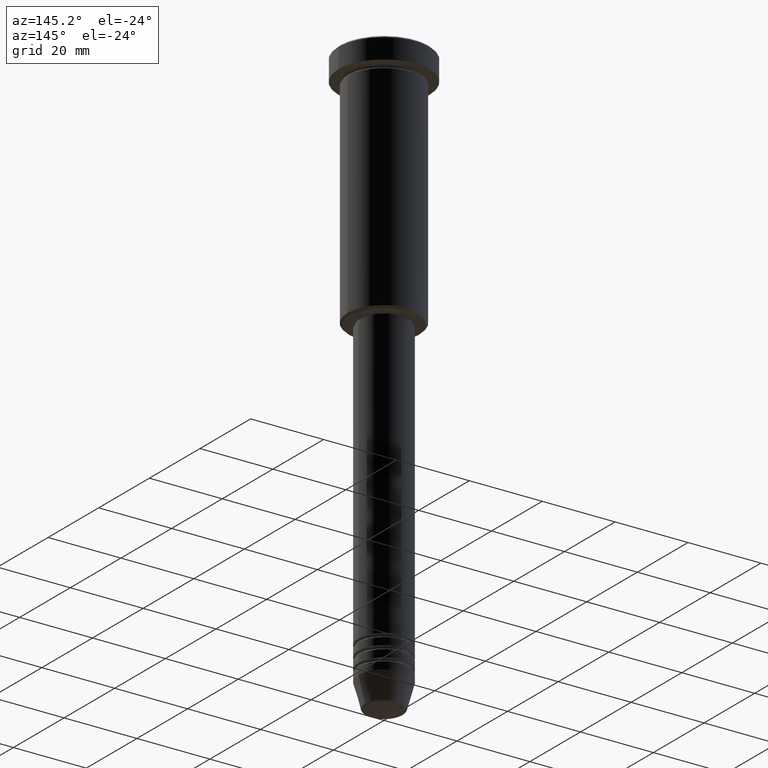
[diagram: clean part render]
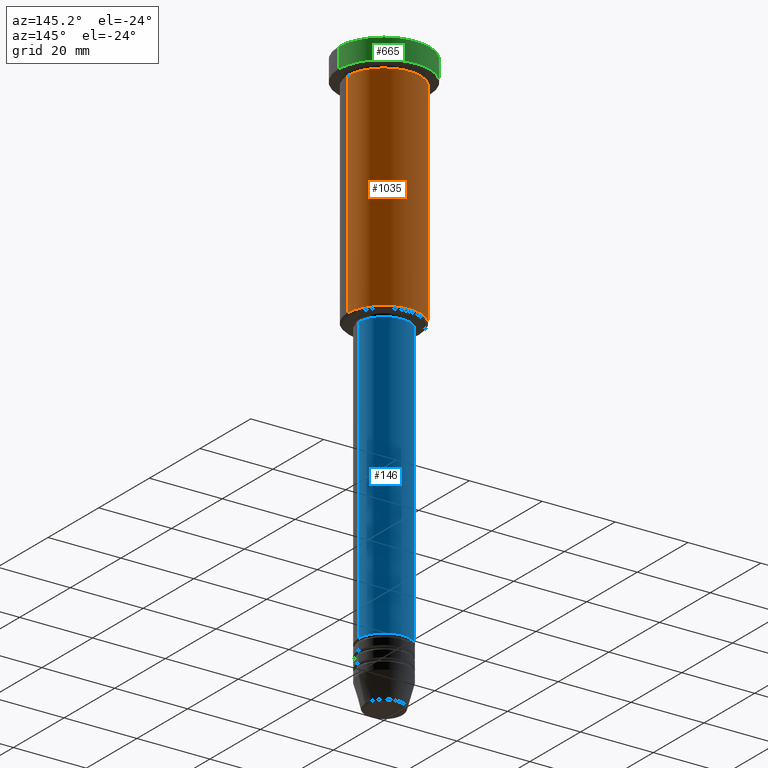
[diagram: same view with three faces highlighted in distinct colors, each labeled with its STEP entity id]
A machine part, auxiliary view with three faces highlighted in distinct colors.
Their STEP definitions:

[orange] entity #1035 — the highlighted cylindrical surface (partial cylindrical patch) has radius 10 mm, axis along (-0, -0, 1).
#34 = AXIS2_PLACEMENT_3D ( 'NONE', #871, #1132, #970 ) ;
#75 = FACE_OUTER_BOUND ( 'NONE', #582, .T. ) ;
#80 = ORIENTED_EDGE ( 'NONE', *, *, #897, .F. ) ;
#89 = CARTESIAN_POINT ( 'NONE',  ( 0.000000000000000000, 0.000000000000000000, 0.000000000000000000 ) ) ;
#142 = DIRECTION ( 'NONE',  ( -0.000000000000000000, -0.000000000000000000, 1.000000000000000000 ) ) ;
#171 = VECTOR ( 'NONE', #1084, 1000.000000000000000 ) ;
#177 = CARTESIAN_POINT ( 'NONE',  ( -10.00000000000000000, 1.224646799147353256E-15, -6.999999999999996447 ) ) ;
#230 = CIRCLE ( 'NONE', #34, 10.00000000000000000 ) ;
#250 = VERTEX_POINT ( 'NONE', #394 ) ;
#276 = EDGE_CURVE ( 'NONE', #250, #1092, #461, .T. ) ;
#335 = VERTEX_POINT ( 'NONE', #460 ) ;
#394 = CARTESIAN_POINT ( 'NONE',  ( 10.00000000000000000, 0.000000000000000000, -6.999999999999996447 ) ) ;
#442 = CYLINDRICAL_SURFACE ( 'NONE', #1144, 10.00000000000000000 ) ;
#460 = CARTESIAN_POINT ( 'NONE',  ( -10.00000000000000000, 1.224646799147353256E-15, -65.50000000000000000 ) ) ;
#461 = CIRCLE ( 'NONE', #861, 10.00000000000000000 ) ;
#509 = EDGE_CURVE ( 'NONE', #335, #1092, #788, .T. ) ;
#512 = DIRECTION ( 'NONE',  ( 1.000000000000000000, 0.000000000000000000, 0.000000000000000000 ) ) ;
#513 = ORIENTED_EDGE ( 'NONE', *, *, #509, .T. ) ;
#515 = LINE ( 'NONE', #1064, #671 ) ;
#542 = CARTESIAN_POINT ( 'NONE',  ( -10.00000000000000000, 1.224646799147353256E-15, 0.000000000000000000 ) ) ;
#557 = ORIENTED_EDGE ( 'NONE', *, *, #276, .F. ) ;
#582 = EDGE_LOOP ( 'NONE', ( #815, #513, #557, #80 ) ) ;
#640 = DIRECTION ( 'NONE',  ( 1.000000000000000000, 0.000000000000000000, 0.000000000000000000 ) ) ;
#671 = VECTOR ( 'NONE', #1057, 1000.000000000000000 ) ;
#732 = DIRECTION ( 'NONE',  ( -0.000000000000000000, -0.000000000000000000, 1.000000000000000000 ) ) ;
#788 = LINE ( 'NONE', #542, #171 ) ;
#815 = ORIENTED_EDGE ( 'NONE', *, *, #930, .T. ) ;
#861 = AXIS2_PLACEMENT_3D ( 'NONE', #967, #142, #512 ) ;
#871 = CARTESIAN_POINT ( 'NONE',  ( 0.000000000000000000, 0.000000000000000000, -65.50000000000000000 ) ) ;
#897 = EDGE_CURVE ( 'NONE', #1080, #250, #515, .T. ) ;
#930 = EDGE_CURVE ( 'NONE', #1080, #335, #230, .T. ) ;
#967 = CARTESIAN_POINT ( 'NONE',  ( 0.000000000000000000, 0.000000000000000000, -6.999999999999996447 ) ) ;
#970 = DIRECTION ( 'NONE',  ( -1.000000000000000000, 0.000000000000000000, 0.000000000000000000 ) ) ;
#1035 = ADVANCED_FACE ( 'NONE', ( #75 ), #442, .T. ) ;
#1057 = DIRECTION ( 'NONE',  ( -0.000000000000000000, -0.000000000000000000, 1.000000000000000000 ) ) ;
#1064 = CARTESIAN_POINT ( 'NONE',  ( 10.00000000000000000, 0.000000000000000000, 0.000000000000000000 ) ) ;
#1080 = VERTEX_POINT ( 'NONE', #1165 ) ;
#1084 = DIRECTION ( 'NONE',  ( -0.000000000000000000, -0.000000000000000000, 1.000000000000000000 ) ) ;
#1092 = VERTEX_POINT ( 'NONE', #177 ) ;
#1132 = DIRECTION ( 'NONE',  ( -0.000000000000000000, -0.000000000000000000, 1.000000000000000000 ) ) ;
#1144 = AXIS2_PLACEMENT_3D ( 'NONE', #89, #732, #640 ) ;
#1165 = CARTESIAN_POINT ( 'NONE',  ( 10.00000000000000000, 0.000000000000000000, -65.50000000000000000 ) ) ;

[blue] entity #146 — the highlighted cylindrical surface (edge-blend (fillet) strip) has radius 7 mm, axis along (-0, -0, 1).
#11 = CIRCLE ( 'NONE', #359, 7.000000000000000000 ) ;
#16 = DIRECTION ( 'NONE',  ( 1.000000000000000000, 0.000000000000000000, 0.000000000000000000 ) ) ;
#18 = ORIENTED_EDGE ( 'NONE', *, *, #831, .F. ) ;
#42 = DIRECTION ( 'NONE',  ( 1.000000000000000000, 0.000000000000000000, 0.000000000000000000 ) ) ;
#106 = CARTESIAN_POINT ( 'NONE',  ( 0.000000000000000000, 0.000000000000000000, 0.000000000000000000 ) ) ;
#111 = CARTESIAN_POINT ( 'NONE',  ( 0.000000000000000000, 0.000000000000000000, -67.00000000000000000 ) ) ;
#115 = VECTOR ( 'NONE', #945, 1000.000000000000000 ) ;
#127 = CARTESIAN_POINT ( 'NONE',  ( 7.000000000000000000, 0.000000000000000000, 0.000000000000000000 ) ) ;
#146 = ADVANCED_FACE ( 'NONE', ( #191 ), #1178, .T. ) ;
#155 = VERTEX_POINT ( 'NONE', #224 ) ;
#159 = CARTESIAN_POINT ( 'NONE',  ( 7.000000000000000000, 0.000000000000000000, -144.9999999999999716 ) ) ;
#191 = FACE_OUTER_BOUND ( 'NONE', #858, .T. ) ;
#224 = CARTESIAN_POINT ( 'NONE',  ( 7.000000000000000000, 0.000000000000000000, -67.00000000000000000 ) ) ;
#231 = VECTOR ( 'NONE', #448, 1000.000000000000000 ) ;
#254 = EDGE_CURVE ( 'NONE', #1001, #285, #821, .T. ) ;
#282 = DIRECTION ( 'NONE',  ( -0.000000000000000000, -0.000000000000000000, 1.000000000000000000 ) ) ;
#285 = VERTEX_POINT ( 'NONE', #1160 ) ;
#300 = AXIS2_PLACEMENT_3D ( 'NONE', #767, #1127, #42 ) ;
#359 = AXIS2_PLACEMENT_3D ( 'NONE', #111, #282, #16 ) ;
#360 = DIRECTION ( 'NONE',  ( -0.000000000000000000, -0.000000000000000000, 1.000000000000000000 ) ) ;
#445 = ORIENTED_EDGE ( 'NONE', *, *, #843, .F. ) ;
#448 = DIRECTION ( 'NONE',  ( -0.000000000000000000, -0.000000000000000000, 1.000000000000000000 ) ) ;
#490 = CARTESIAN_POINT ( 'NONE',  ( -7.000000000000000000, 8.572527594031473190E-16, -67.00000000000000000 ) ) ;
#523 = ORIENTED_EDGE ( 'NONE', *, *, #1081, .T. ) ;
#711 = LINE ( 'NONE', #1175, #231 ) ;
#728 = DIRECTION ( 'NONE',  ( 1.000000000000000000, 0.000000000000000000, 0.000000000000000000 ) ) ;
#737 = VERTEX_POINT ( 'NONE', #490 ) ;
#767 = CARTESIAN_POINT ( 'NONE',  ( 0.000000000000000000, 0.000000000000000000, -144.9999999999999716 ) ) ;
#821 = CIRCLE ( 'NONE', #300, 7.000000000000000000 ) ;
#831 = EDGE_CURVE ( 'NONE', #1001, #155, #937, .T. ) ;
#843 = EDGE_CURVE ( 'NONE', #155, #737, #11, .T. ) ;
#858 = EDGE_LOOP ( 'NONE', ( #1061, #523, #445, #18 ) ) ;
#923 = AXIS2_PLACEMENT_3D ( 'NONE', #106, #360, #728 ) ;
#937 = LINE ( 'NONE', #127, #115 ) ;
#945 = DIRECTION ( 'NONE',  ( -0.000000000000000000, -0.000000000000000000, 1.000000000000000000 ) ) ;
#1001 = VERTEX_POINT ( 'NONE', #159 ) ;
#1061 = ORIENTED_EDGE ( 'NONE', *, *, #254, .T. ) ;
#1081 = EDGE_CURVE ( 'NONE', #285, #737, #711, .T. ) ;
#1127 = DIRECTION ( 'NONE',  ( -0.000000000000000000, -0.000000000000000000, 1.000000000000000000 ) ) ;
#1160 = CARTESIAN_POINT ( 'NONE',  ( -7.000000000000000000, 8.572527594031473190E-16, -144.9999999999999716 ) ) ;
#1175 = CARTESIAN_POINT ( 'NONE',  ( -7.000000000000000000, 8.572527594031473190E-16, 0.000000000000000000 ) ) ;
#1178 = CYLINDRICAL_SURFACE ( 'NONE', #923, 7.000000000000000000 ) ;

[green] entity #665 — the highlighted cylindrical surface (partial cylindrical patch) has radius 12.5 mm, axis along (-0, -0, 1).
#15 = CARTESIAN_POINT ( 'NONE',  ( 0.000000000000000000, 0.000000000000000000, 0.000000000000000000 ) ) ;
#154 = CIRCLE ( 'NONE', #907, 12.50000000000000000 ) ;
#196 = CARTESIAN_POINT ( 'NONE',  ( -12.50000000000000000, 1.530808498934191521E-15, -0.4999999999999917843 ) ) ;
#213 = DIRECTION ( 'NONE',  ( 0.000000000000000000, 0.000000000000000000, -1.000000000000000000 ) ) ;
#270 = ORIENTED_EDGE ( 'NONE', *, *, #590, .T. ) ;
#304 = CARTESIAN_POINT ( 'NONE',  ( -12.50000000000000000, 1.530808498934191521E-15, 0.000000000000000000 ) ) ;
#320 = AXIS2_PLACEMENT_3D ( 'NONE', #15, #745, #828 ) ;
#399 = AXIS2_PLACEMENT_3D ( 'NONE', #1038, #213, #505 ) ;
#462 = DIRECTION ( 'NONE',  ( -0.000000000000000000, -0.000000000000000000, 1.000000000000000000 ) ) ;
#505 = DIRECTION ( 'NONE',  ( 1.000000000000000000, 0.000000000000000000, 0.000000000000000000 ) ) ;
#544 = DIRECTION ( 'NONE',  ( -0.000000000000000000, -0.000000000000000000, 1.000000000000000000 ) ) ;
#590 = EDGE_CURVE ( 'NONE', #851, #797, #1123, .T. ) ;
#600 = VECTOR ( 'NONE', #462, 1000.000000000000000 ) ;
#606 = ORIENTED_EDGE ( 'NONE', *, *, #1091, .F. ) ;
#644 = DIRECTION ( 'NONE',  ( 1.000000000000000000, 0.000000000000000000, 0.000000000000000000 ) ) ;
#665 = ADVANCED_FACE ( 'NONE', ( #836 ), #1022, .T. ) ;
#696 = ORIENTED_EDGE ( 'NONE', *, *, #869, .T. ) ;
#705 = CARTESIAN_POINT ( 'NONE',  ( 12.50000000000000000, 0.000000000000000000, 0.000000000000000000 ) ) ;
#745 = DIRECTION ( 'NONE',  ( -0.000000000000000000, -0.000000000000000000, 1.000000000000000000 ) ) ;
#753 = CARTESIAN_POINT ( 'NONE',  ( -12.50000000000000000, 1.530808498934191521E-15, -5.999999999999996447 ) ) ;
#797 = VERTEX_POINT ( 'NONE', #196 ) ;
#828 = DIRECTION ( 'NONE',  ( 1.000000000000000000, 0.000000000000000000, 0.000000000000000000 ) ) ;
#836 = FACE_OUTER_BOUND ( 'NONE', #1118, .T. ) ;
#851 = VERTEX_POINT ( 'NONE', #753 ) ;
#869 = EDGE_CURVE ( 'NONE', #797, #946, #925, .T. ) ;
#890 = CARTESIAN_POINT ( 'NONE',  ( 12.50000000000000000, 0.000000000000000000, -0.4999999999999917843 ) ) ;
#907 = AXIS2_PLACEMENT_3D ( 'NONE', #1170, #544, #644 ) ;
#925 = CIRCLE ( 'NONE', #399, 12.50000000000000000 ) ;
#941 = VECTOR ( 'NONE', #1040, 1000.000000000000000 ) ;
#946 = VERTEX_POINT ( 'NONE', #890 ) ;
#1005 = CARTESIAN_POINT ( 'NONE',  ( 12.50000000000000000, 0.000000000000000000, -5.999999999999996447 ) ) ;
#1012 = LINE ( 'NONE', #705, #600 ) ;
#1022 = CYLINDRICAL_SURFACE ( 'NONE', #320, 12.50000000000000000 ) ;
#1038 = CARTESIAN_POINT ( 'NONE',  ( 0.000000000000000000, 0.000000000000000000, -0.4999999999999917843 ) ) ;
#1040 = DIRECTION ( 'NONE',  ( -0.000000000000000000, -0.000000000000000000, 1.000000000000000000 ) ) ;
#1091 = EDGE_CURVE ( 'NONE', #1100, #946, #1012, .T. ) ;
#1097 = ORIENTED_EDGE ( 'NONE', *, *, #1130, .T. ) ;
#1100 = VERTEX_POINT ( 'NONE', #1005 ) ;
#1118 = EDGE_LOOP ( 'NONE', ( #1097, #270, #696, #606 ) ) ;
#1123 = LINE ( 'NONE', #304, #941 ) ;
#1130 = EDGE_CURVE ( 'NONE', #1100, #851, #154, .T. ) ;
#1170 = CARTESIAN_POINT ( 'NONE',  ( 0.000000000000000000, 0.000000000000000000, -5.999999999999996447 ) ) ;